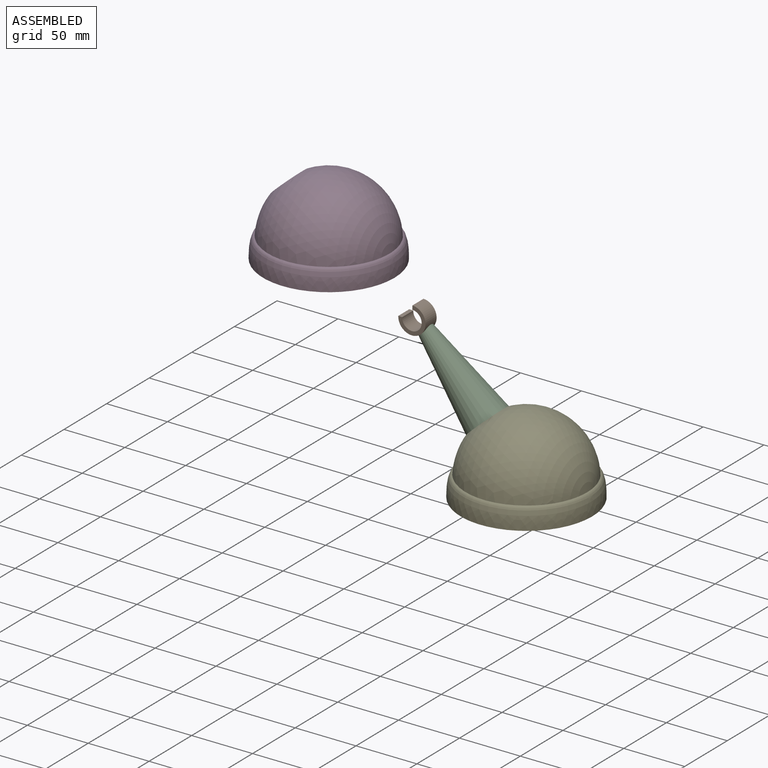
[diagram: assembled view]
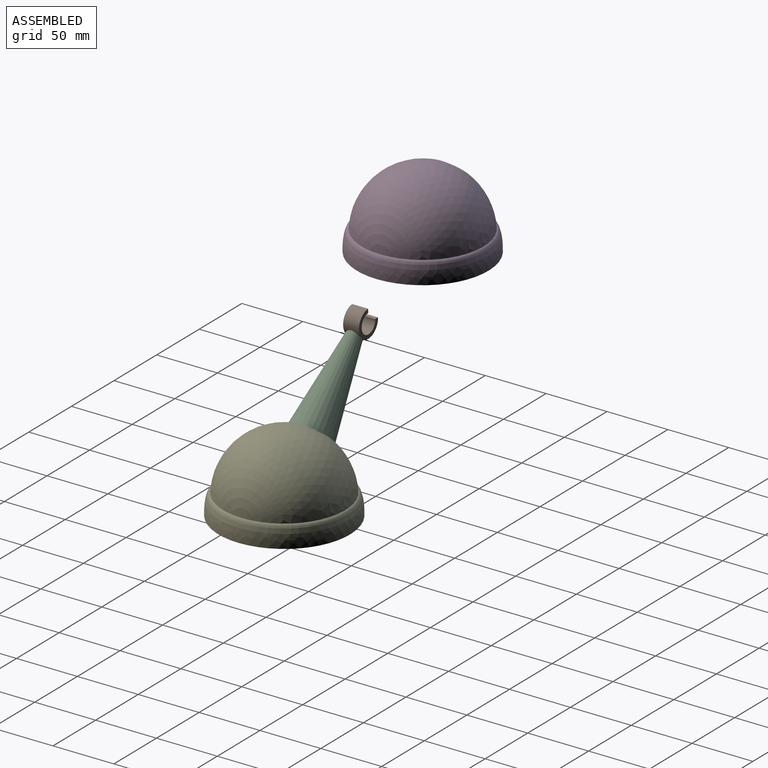
[diagram: assembled view, second angle]
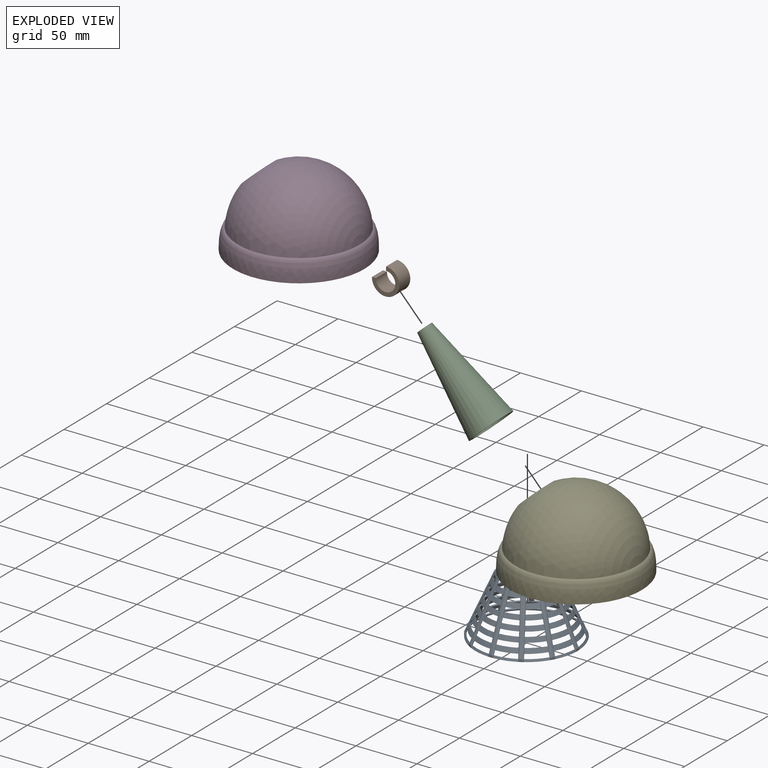
[diagram: exploded view]
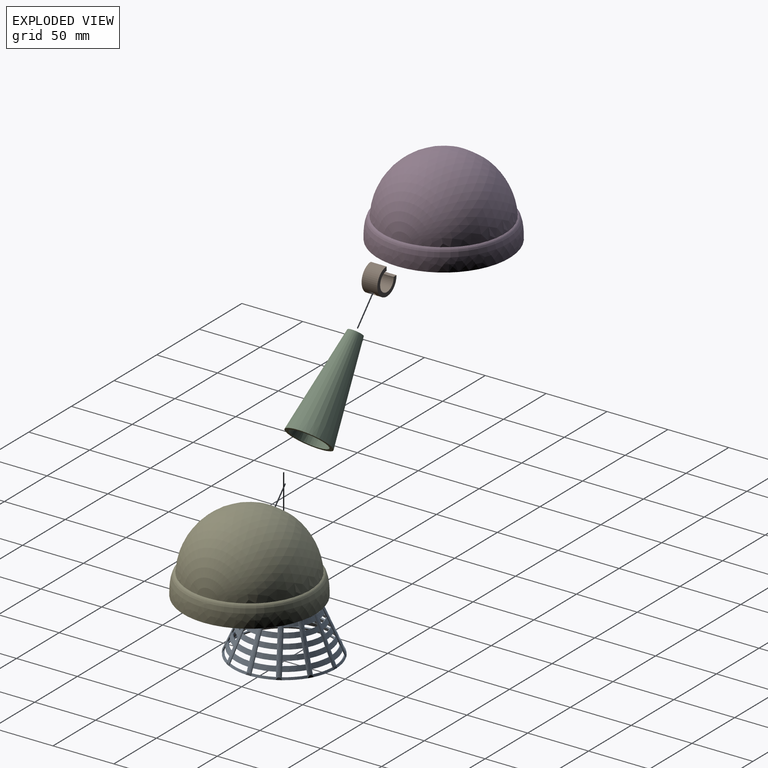
[diagram: exploded view, second angle]
ASSEMBLY  parts=5 mates=3
PART A: 235 faces, bbox 91x91x52.1 mm
  f0: cylinder r=19.97mm len=39.94mm, axis (0,0,-1), area 125.5mm2, adj f1,f216
  f1: plane 39.94x39.94mm, normal (0,0,1), area 855.3mm2, adj f0,f3,f4,f5,f6,f7,f8,f9
  f2: plane 41.24x41.24mm, normal (0,0,-1), area 938.1mm2, adj f3,f4,f5,f6,f7,f8,f9,f10
  f3: cylinder r=2mm len=2mm, axis (-0.87,0.5,0), area 4.1mm2, adj f1,f2,f4,f5
  f4: cylinder r=2mm len=2mm, axis (0,1,0), area 4.1mm2, adj f1,f2,f3,f5
  f5: torus R=6.97mm, axis (0,0,1), area 2.9mm2, adj f1,f2,f3,f4
  f6: cylinder r=2mm len=2mm, axis (-0.87,0.5,0), area 4.1mm2, adj f1,f2,f7,f8
  f7: cylinder r=2mm len=2mm, axis (0.87,0.5,0), area 4.1mm2, adj f1,f2,f6,f8
  f8: torus R=6.97mm, axis (0,0,1), area 2.9mm2, adj f1,f2,f6,f7
  f9: cylinder r=2mm len=2.8mm, axis (-0.87,0.5,0), area 6.5mm2, adj f1,f2,f11,f12
  f10: cylinder r=2mm len=3.08mm, axis (0,1,0), area 6.5mm2, adj f1,f2,f11,f12
  f11: torus R=13.47mm, axis (0,0,1), area 17.3mm2, adj f1,f2,f9,f10
  f12: torus R=6.97mm, axis (0,0,1), area 11.4mm2, adj f1,f2,f9,f10
  f13: cylinder r=2mm len=2.8mm, axis (-0.87,0.5,0), area 6.5mm2, adj f1,f2,f14,f15
  f14: torus R=13.47mm, axis (0,0,1), area 17.3mm2, adj f1,f2,f13,f16
  f15: torus R=6.97mm, axis (0,0,1), area 11.4mm2, adj f1,f2,f13,f16
  f16: cylinder r=2mm len=2.8mm, axis (0.87,0.5,0), area 6.5mm2, adj f1,f2,f14,f15
  f17: cylinder r=2mm len=2.78mm, axis (-0.87,0.5,0), area 6.4mm2, adj f1,f2,f18,f20
  f18: torus R=19.97mm, axis (0,0,1), area 31.6mm2, adj f1,f2,f17,f19
  f19: cylinder r=2mm len=3.05mm, axis (0,1,0), area 6.4mm2, adj f1,f2,f18,f20
  f20: torus R=13.47mm, axis (0,0,1), area 26mm2, adj f1,f2,f17,f19
  f21: cylinder r=2mm len=2.78mm, axis (-0.87,0.5,0), area 6.4mm2, adj f1,f2,f22,f23
  f22: torus R=19.97mm, axis (0,0,1), area 31.6mm2, adj f1,f2,f21,f24
  f23: torus R=13.47mm, axis (0,0,1), area 26.4mm2, adj f1,f2,f21,f24
  f24: cylinder r=2mm len=2.78mm, axis (0.87,0.5,0), area 6.4mm2, adj f1,f2,f22,f23
  f25: torus R=19.97mm, axis (0,0,1), area 31.6mm2, adj f1,f2,f26,f27
  f26: cylinder r=2mm len=2.78mm, axis (0.87,0.5,0), area 6.4mm2, adj f1,f2,f25,f28
  f27: cylinder r=2mm len=2.78mm, axis (0.87,-0.5,0), area 6.4mm2, adj f1,f2,f25,f28
  f28: torus R=13.47mm, axis (0,0,1), area 25.7mm2, adj f1,f2,f26,f27
  f29: torus R=19.97mm, axis (0,0,1), area 31.6mm2, adj f1,f2,f30,f32
  f30: cylinder r=2mm len=3.05mm, axis (0,-1,0), area 6.4mm2, adj f1,f2,f29,f31
  f31: torus R=13.47mm, axis (0,0,1), area 26.4mm2, adj f1,f2,f30,f32
  f32: cylinder r=2mm len=2.78mm, axis (0.87,-0.5,0), area 6.4mm2, adj f1,f2,f29,f31
  f33: torus R=19.97mm, axis (0,0,1), area 31.6mm2, adj f1,f2,f34,f35
  f34: cylinder r=2mm len=3.05mm, axis (0,-1,0), area 6.4mm2, adj f1,f2,f33,f36
  f35: cylinder r=2mm len=2.78mm, axis (0.87,0.5,0), area 6.4mm2, adj f1,f2,f33,f36
  f36: torus R=13.47mm, axis (0,0,1), area 26.4mm2, adj f1,f2,f34,f35
  f37: torus R=19.97mm, axis (0,0,1), area 31.6mm2, adj f1,f2,f38,f39
  f38: cylinder r=2mm len=2.78mm, axis (0.87,0.5,0), area 6.4mm2, adj f1,f2,f37,f40
  f39: cylinder r=2mm len=3.05mm, axis (0,1,0), area 6.4mm2, adj f1,f2,f37,f40
  f40: torus R=13.47mm, axis (0,0,1), area 26mm2, adj f1,f2,f38,f39
  f41: torus R=13.47mm, axis (0,0,1), area 17.3mm2, adj f1,f2,f42,f44
  f42: cylinder r=2mm len=2.8mm, axis (0.87,-0.5,0), area 6.5mm2, adj f1,f2,f41,f43
  f43: torus R=6.97mm, axis (0,0,1), area 11.4mm2, adj f1,f2,f42,f44
  f44: cylinder r=2mm len=3.08mm, axis (0,-1,0), area 6.5mm2, adj f1,f2,f41,f43
  f45: torus R=13.47mm, axis (0,0,1), area 17.3mm2, adj f1,f2,f46,f48
  f46: cylinder r=2mm len=2.8mm, axis (0.87,0.5,0), area 6.5mm2, adj f1,f2,f45,f47
  f47: torus R=6.97mm, axis (0,0,1), area 11.4mm2, adj f1,f2,f46,f48
  f48: cylinder r=2mm len=2.8mm, axis (0.87,-0.5,0), area 6.5mm2, adj f1,f2,f45,f47
  f49: torus R=13.47mm, axis (0,0,1), area 17.3mm2, adj f1,f2,f50,f52
  f50: cylinder r=2mm len=2.8mm, axis (0.87,0.5,0), area 6.5mm2, adj f1,f2,f49,f51
  f51: torus R=6.97mm, axis (0,0,1), area 11.4mm2, adj f1,f2,f50,f52
  f52: cylinder r=2mm len=3.08mm, axis (0,1,0), area 6.5mm2, adj f1,f2,f49,f51
  f53: torus R=13.47mm, axis (0,0,1), area 17.3mm2, adj f1,f2,f55,f56
  f54: torus R=6.97mm, axis (0,0,1), area 11.4mm2, adj f1,f2,f55,f56
  f55: cylinder r=2mm len=2.8mm, axis (0.87,0.5,0), area 6.5mm2, adj f1,f2,f53,f54
  f56: cylinder r=2mm len=3.08mm, axis (0,-1,0), area 6.5mm2, adj f1,f2,f53,f54
  f57: torus R=6.97mm, axis (0,0,1), area 2.9mm2, adj f1,f2,f58,f59
  f58: cylinder r=2mm len=2mm, axis (0.87,0.5,0), area 4.1mm2, adj f1,f2,f57,f59
  f59: cylinder r=2mm len=2mm, axis (0.87,-0.5,0), area 4.1mm2, adj f1,f2,f57,f58
  f60: torus R=6.97mm, axis (0,0,1), area 2.9mm2, adj f1,f2,f61,f62
  f61: cylinder r=2mm len=2mm, axis (0.87,-0.5,0), area 4.1mm2, adj f1,f2,f60,f62
  f62: cylinder r=2mm len=2mm, axis (0,-1,0), area 4.1mm2, adj f1,f2,f60,f61
  f63: torus R=6.97mm, axis (0,0,1), area 2.9mm2, adj f1,f2,f64,f65
  f64: cylinder r=2mm len=2mm, axis (0.87,0.5,0), area 4.1mm2, adj f1,f2,f63,f65
  f65: cylinder r=2mm len=2mm, axis (0,-1,0), area 4.1mm2, adj f1,f2,f63,f64
  f66: torus R=6.97mm, axis (0,0,1), area 2.9mm2, adj f1,f2,f67,f68
  f67: cylinder r=2mm len=2mm, axis (0.87,0.5,0), area 4.1mm2, adj f1,f2,f66,f68
  f68: cylinder r=2mm len=2mm, axis (0,1,0), area 4.1mm2, adj f1,f2,f66,f67
  f69: bspline ~51.99x20.46mm, area 359.1mm2, adj f80,f81,f102,f114,f115,f116,f117,f118
  f70: bspline ~51.99x20.46mm, area 359.1mm2, adj f82,f83,f103,f115,f116,f117,f118,f119
  f71: bspline ~51.99x21.36mm, area 359.1mm2, adj f84,f85,f104,f123,f124,f125,f126,f127
  f72: bspline ~51.99x20.46mm, area 359.1mm2, adj f86,f87,f105,f131,f132,f133,f134,f135
  f73: bspline ~51.99x20.46mm, area 359.1mm2, adj f88,f89,f106,f139,f140,f141,f142,f143
  f74: bspline ~51.99x21.36mm, area 359.1mm2, adj f90,f91,f107,f147,f148,f149,f150,f151
  f75: bspline ~51.99x20.46mm, area 359.1mm2, adj f92,f93,f108,f155,f156,f157,f158,f159
  f76: bspline ~51.99x20.46mm, area 359.1mm2, adj f94,f95,f109,f163,f164,f165,f166,f167
  f77: bspline ~51.99x21.36mm, area 359.1mm2, adj f96,f97,f110,f171,f172,f173,f174,f175
  f78: bspline ~51.99x20.46mm, area 359.1mm2, adj f98,f99,f111,f179,f180,f181,f182,f183
  f79: bspline ~51.99x20.46mm, area 359.1mm2, adj f100,f101,f112,f114,f187,f188,f189,f190
  f80: plane 1.85x1.12mm, normal (-0.87,0.5,0), area 0.1mm2, adj f69,f121,f234
  f81: plane 1.85x1.12mm, normal (-0.87,0.5,0), area 0.1mm2, adj f69,f114,f234
  f82: plane 1.85x1.12mm, normal (-0.5,0.87,0), area 0.1mm2, adj f70,f129,f233
  f83: plane 1.85x1.12mm, normal (-0.5,0.87,0), area 0.1mm2, adj f70,f121,f233
  f84: plane 2.12x0.34mm, normal (0,1,0), area 0.1mm2, adj f71,f137,f232
  f85: plane 2.12x0.35mm, normal (0,1,0), area 0.1mm2, adj f71,f129,f232
  f86: plane 1.85x1.12mm, normal (0.5,0.87,0), area 0.1mm2, adj f72,f145,f231
  f87: plane 1.85x1.12mm, normal (0.5,0.87,0), area 0.1mm2, adj f72,f137,f231
  f88: plane 1.85x1.12mm, normal (0.87,0.5,0), area 0.1mm2, adj f73,f153,f230
  f89: plane 1.85x1.12mm, normal (0.87,0.5,0), area 0.1mm2, adj f73,f145,f230
  f90: plane 2.12x0.35mm, normal (1,0,0), area 0.1mm2, adj f74,f161,f229
  f91: plane 2.12x0.34mm, normal (1,0,0), area 0.1mm2, adj f74,f153,f229
  f92: plane 1.85x1.12mm, normal (0.87,-0.5,0), area 0.1mm2, adj f75,f169,f228
  f93: plane 1.85x1.12mm, normal (0.87,-0.5,0), area 0.1mm2, adj f75,f161,f228
  f94: plane 1.85x1.12mm, normal (0.5,-0.87,0), area 0.1mm2, adj f76,f177,f227
  f95: plane 1.85x1.12mm, normal (0.5,-0.87,0), area 0.1mm2, adj f76,f169,f227
  f96: plane 2.12x0.35mm, normal (0,-1,0), area 0.1mm2, adj f77,f185,f226
  f97: plane 2.12x0.34mm, normal (0,-1,0), area 0.1mm2, adj f77,f177,f226
  f98: plane 1.85x1.12mm, normal (-0.5,-0.87,0), area 0.1mm2, adj f78,f193,f225
  f99: plane 1.85x1.12mm, normal (-0.5,-0.87,0), area 0.1mm2, adj f78,f185,f225
  f100: plane 1.85x1.12mm, normal (-0.87,-0.5,0), area 0.1mm2, adj f79,f114,f224
  f101: plane 1.85x1.12mm, normal (-0.87,-0.5,0), area 0.1mm2, adj f79,f193,f224
  f102: plane 3.46x2mm, normal (0.87,-0.5,0), area 6.3mm2, adj f69,f223
  f103: plane 3.46x2mm, normal (0.5,-0.87,0), area 6.3mm2, adj f70,f223
  f104: plane 4x2mm, normal (0,-1,0), area 6.3mm2, adj f71,f223
  f105: plane 3.46x2mm, normal (-0.5,-0.87,0), area 6.3mm2, adj f72,f223
  f106: plane 3.46x2mm, normal (-0.87,-0.5,0), area 6.3mm2, adj f73,f223
  f107: plane 4x2mm, normal (-1,0,0), area 6.3mm2, adj f74,f223
  f108: plane 3.46x2mm, normal (-0.87,0.5,0), area 6.3mm2, adj f75,f223
  f109: plane 3.46x2mm, normal (-0.5,0.87,0), area 6.3mm2, adj f76,f223
  f110: plane 4x2mm, normal (0,1,0), area 6.3mm2, adj f77,f223
  f111: plane 3.46x2mm, normal (0.5,0.87,0), area 6.3mm2, adj f78,f223
  f112: plane 3.46x2mm, normal (0.87,0.5,0), area 6.3mm2, adj f79,f223
  f113: cone r=41.06mm half-angle=24deg, axis (0,0,1), area 328.5mm2, adj f196,f223
  f114: cone r=41.98mm half-angle=24deg, axis (0,0,1), area 904.4mm2, adj f2,f69,f79,f81,f100,f195,f196,f197
  f115: cone r=41.98mm half-angle=24deg, axis (0,0,1), area 35.5mm2, adj f69,f70,f196,f223
  f116: cone r=41.98mm half-angle=24deg, axis (0,0,1), area 65.5mm2, adj f69,f70,f195,f198
  f117: cone r=41.98mm half-angle=24deg, axis (0,0,1), area 59.2mm2, adj f69,f70,f199,f201
  f118: cone r=41.98mm half-angle=24deg, axis (0,0,1), area 52.8mm2, adj f69,f70,f202,f204
  f119: cone r=41.98mm half-angle=24deg, axis (0,0,1), area 46.4mm2, adj f69,f70,f205,f207
  f120: cone r=41.98mm half-angle=24deg, axis (0,0,1), area 40mm2, adj f69,f70,f208,f210
  f121: cone r=41.98mm half-angle=24deg, axis (0,0,1), area 14.5mm2, adj f2,f69,f70,f80,f83,f215
  f122: cone r=41.98mm half-angle=24deg, axis (0,0,1), area 33.6mm2, adj f69,f70,f211,f214
  f123: cone r=41.98mm half-angle=24deg, axis (0,0,1), area 35.5mm2, adj f70,f71,f196,f223
  f124: cone r=41.98mm half-angle=24deg, axis (0,0,1), area 65.5mm2, adj f70,f71,f195,f198
  f125: cone r=41.98mm half-angle=24deg, axis (0,0,1), area 59.2mm2, adj f70,f71,f199,f201
  f126: cone r=41.98mm half-angle=24deg, axis (0,0,1), area 52.8mm2, adj f70,f71,f202,f204
  f127: cone r=41.98mm half-angle=24deg, axis (0,0,1), area 46.4mm2, adj f70,f71,f205,f207
  f128: cone r=41.98mm half-angle=24deg, axis (0,0,1), area 40mm2, adj f70,f71,f208,f210
  f129: cone r=41.98mm half-angle=24deg, axis (0,0,1), area 14.5mm2, adj f2,f70,f71,f82,f85,f215
  f130: cone r=41.98mm half-angle=24deg, axis (0,0,1), area 33.6mm2, adj f70,f71,f211,f214
  f131: cone r=41.98mm half-angle=24deg, axis (0,0,1), area 35.5mm2, adj f71,f72,f196,f223
  f132: cone r=41.98mm half-angle=24deg, axis (0,0,1), area 65.5mm2, adj f71,f72,f195,f198
  f133: cone r=41.98mm half-angle=24deg, axis (0,0,1), area 59.2mm2, adj f71,f72,f199,f201
  f134: cone r=41.98mm half-angle=24deg, axis (0,0,1), area 52.8mm2, adj f71,f72,f202,f204
  f135: cone r=41.98mm half-angle=24deg, axis (0,0,1), area 46.4mm2, adj f71,f72,f205,f207
  f136: cone r=41.98mm half-angle=24deg, axis (0,0,1), area 40mm2, adj f71,f72,f208,f210
  f137: cone r=41.98mm half-angle=24deg, axis (0,0,1), area 14.5mm2, adj f2,f71,f72,f84,f87,f215
  f138: cone r=41.98mm half-angle=24deg, axis (0,0,1), area 33.6mm2, adj f71,f72,f211,f214
  f139: cone r=41.98mm half-angle=24deg, axis (0,0,1), area 35.5mm2, adj f72,f73,f196,f223
  f140: cone r=41.98mm half-angle=24deg, axis (0,0,1), area 65.5mm2, adj f72,f73,f195,f198
  f141: cone r=41.98mm half-angle=24deg, axis (0,0,1), area 59.2mm2, adj f72,f73,f199,f201
  f142: cone r=41.98mm half-angle=24deg, axis (0,0,1), area 52.8mm2, adj f72,f73,f202,f204
  f143: cone r=41.98mm half-angle=24deg, axis (0,0,1), area 46.4mm2, adj f72,f73,f205,f207
  f144: cone r=41.98mm half-angle=24deg, axis (0,0,1), area 40mm2, adj f72,f73,f208,f210
  f145: cone r=41.98mm half-angle=24deg, axis (0,0,1), area 14.5mm2, adj f2,f72,f73,f86,f89,f215
  f146: cone r=41.98mm half-angle=24deg, axis (0,0,1), area 33.6mm2, adj f72,f73,f211,f214
  f147: cone r=41.98mm half-angle=24deg, axis (0,0,1), area 35.5mm2, adj f73,f74,f196,f223
  f148: cone r=41.98mm half-angle=24deg, axis (0,0,1), area 65.5mm2, adj f73,f74,f195,f198
  f149: cone r=41.98mm half-angle=24deg, axis (0,0,1), area 59.2mm2, adj f73,f74,f199,f201
  f150: cone r=41.98mm half-angle=24deg, axis (0,0,1), area 52.8mm2, adj f73,f74,f202,f204
  f151: cone r=41.98mm half-angle=24deg, axis (0,0,1), area 46.4mm2, adj f73,f74,f205,f207
  f152: cone r=41.98mm half-angle=24deg, axis (0,0,1), area 40mm2, adj f73,f74,f208,f210
  f153: cone r=41.98mm half-angle=24deg, axis (0,0,1), area 14.5mm2, adj f2,f73,f74,f88,f91,f215
  f154: cone r=41.98mm half-angle=24deg, axis (0,0,1), area 33.6mm2, adj f73,f74,f211,f214
  f155: cone r=41.98mm half-angle=24deg, axis (0,0,1), area 35.5mm2, adj f74,f75,f196,f223
  f156: cone r=41.98mm half-angle=24deg, axis (0,0,1), area 65.5mm2, adj f74,f75,f195,f198
  f157: cone r=41.98mm half-angle=24deg, axis (0,0,1), area 59.2mm2, adj f74,f75,f199,f201
  f158: cone r=41.98mm half-angle=24deg, axis (0,0,1), area 52.8mm2, adj f74,f75,f202,f204
  f159: cone r=41.98mm half-angle=24deg, axis (0,0,1), area 46.4mm2, adj f74,f75,f205,f207
  f160: cone r=41.98mm half-angle=24deg, axis (0,0,1), area 40mm2, adj f74,f75,f208,f210
  f161: cone r=41.98mm half-angle=24deg, axis (0,0,1), area 14.5mm2, adj f2,f74,f75,f90,f93,f215
  f162: cone r=41.98mm half-angle=24deg, axis (0,0,1), area 33.6mm2, adj f74,f75,f211,f214
  f163: cone r=41.98mm half-angle=24deg, axis (0,0,1), area 35.5mm2, adj f75,f76,f196,f223
  f164: cone r=41.98mm half-angle=24deg, axis (0,0,1), area 65.5mm2, adj f75,f76,f195,f198
  f165: cone r=41.98mm half-angle=24deg, axis (0,0,1), area 59.2mm2, adj f75,f76,f199,f201
  f166: cone r=41.98mm half-angle=24deg, axis (0,0,1), area 52.8mm2, adj f75,f76,f202,f204
  f167: cone r=41.98mm half-angle=24deg, axis (0,0,1), area 46.4mm2, adj f75,f76,f205,f207
  f168: cone r=41.98mm half-angle=24deg, axis (0,0,1), area 40mm2, adj f75,f76,f208,f210
  f169: cone r=41.98mm half-angle=24deg, axis (0,0,1), area 14.5mm2, adj f2,f75,f76,f92,f95,f215
  f170: cone r=41.98mm half-angle=24deg, axis (0,0,1), area 33.6mm2, adj f75,f76,f211,f214
  f171: cone r=41.98mm half-angle=24deg, axis (0,0,1), area 35.5mm2, adj f76,f77,f196,f223
  f172: cone r=41.98mm half-angle=24deg, axis (0,0,1), area 65.5mm2, adj f76,f77,f195,f198
  f173: cone r=41.98mm half-angle=24deg, axis (0,0,1), area 59.2mm2, adj f76,f77,f199,f201
  f174: cone r=41.98mm half-angle=24deg, axis (0,0,1), area 52.8mm2, adj f76,f77,f202,f204
  f175: cone r=41.98mm half-angle=24deg, axis (0,0,1), area 46.4mm2, adj f76,f77,f205,f207
  f176: cone r=41.98mm half-angle=24deg, axis (0,0,1), area 40mm2, adj f76,f77,f208,f210
  f177: cone r=41.98mm half-angle=24deg, axis (0,0,1), area 14.5mm2, adj f2,f76,f77,f94,f97,f215
  f178: cone r=41.98mm half-angle=24deg, axis (0,0,1), area 33.6mm2, adj f76,f77,f211,f214
  f179: cone r=41.98mm half-angle=24deg, axis (0,0,1), area 35.5mm2, adj f77,f78,f196,f223
  f180: cone r=41.98mm half-angle=24deg, axis (0,0,1), area 65.5mm2, adj f77,f78,f195,f198
  f181: cone r=41.98mm half-angle=24deg, axis (0,0,1), area 59.2mm2, adj f77,f78,f199,f201
  f182: cone r=41.98mm half-angle=24deg, axis (0,0,1), area 52.8mm2, adj f77,f78,f202,f204
  f183: cone r=41.98mm half-angle=24deg, axis (0,0,1), area 46.4mm2, adj f77,f78,f205,f207
  f184: cone r=41.98mm half-angle=24deg, axis (0,0,1), area 40mm2, adj f77,f78,f208,f210
  f185: cone r=41.98mm half-angle=24deg, axis (0,0,1), area 14.5mm2, adj f2,f77,f78,f96,f99,f215
  f186: cone r=41.98mm half-angle=24deg, axis (0,0,1), area 33.6mm2, adj f77,f78,f211,f214
  f187: cone r=41.98mm half-angle=24deg, axis (0,0,1), area 35.5mm2, adj f78,f79,f196,f223
  f188: cone r=41.98mm half-angle=24deg, axis (0,0,1), area 65.5mm2, adj f78,f79,f195,f198
  f189: cone r=41.98mm half-angle=24deg, axis (0,0,1), area 59.2mm2, adj f78,f79,f199,f201
  f190: cone r=41.98mm half-angle=24deg, axis (0,0,1), area 52.8mm2, adj f78,f79,f202,f204
  f191: cone r=41.98mm half-angle=24deg, axis (0,0,1), area 46.4mm2, adj f78,f79,f205,f207
  f192: cone r=41.98mm half-angle=24deg, axis (0,0,1), area 40mm2, adj f78,f79,f208,f210
  f193: cone r=41.98mm half-angle=24deg, axis (0,0,1), area 14.5mm2, adj f2,f78,f79,f98,f101,f215
  f194: cone r=41.98mm half-angle=24deg, axis (0,0,1), area 33.6mm2, adj f78,f79,f211,f214
  f195: torus R=38.93mm, axis (0,0,1), area 227.6mm2, adj f69,f70,f71,f72,f73,f74,f75,f76
  f196: torus R=41.98mm, axis (0,0,1), area 237.4mm2, adj f69,f70,f71,f72,f73,f74,f75,f76
  f197: bspline ~52x21.36mm, area 18.4mm2, adj f114,f195,f196
  f198: torus R=38.93mm, axis (0,0,1), area 217.3mm2, adj f69,f70,f71,f72,f73,f74,f75,f76
  f199: torus R=35.88mm, axis (0,0,1), area 207.6mm2, adj f69,f70,f71,f72,f73,f74,f75,f76
  f200: bspline ~52x21.36mm, area 18.3mm2, adj f114,f198,f199
  f201: torus R=35.88mm, axis (0,0,1), area 197.4mm2, adj f69,f70,f71,f72,f73,f74,f75,f76
  f202: torus R=32.83mm, axis (0,0,1), area 187.6mm2, adj f69,f70,f71,f72,f73,f74,f75,f76
  f203: bspline ~52x21.36mm, area 18.3mm2, adj f114,f201,f202
  f204: torus R=32.83mm, axis (0,0,1), area 177.4mm2, adj f69,f70,f71,f72,f73,f74,f75,f76
  f205: torus R=29.77mm, axis (0,0,1), area 167.6mm2, adj f69,f70,f71,f72,f73,f74,f75,f76
  f206: bspline ~52x21.36mm, area 18.2mm2, adj f114,f204,f205
  f207: torus R=29.77mm, axis (0,0,1), area 157.4mm2, adj f69,f70,f71,f72,f73,f74,f75,f76
  f208: torus R=26.72mm, axis (0,0,1), area 147.6mm2, adj f69,f70,f71,f72,f73,f74,f75,f76
  f209: bspline ~52x21.36mm, area 18.2mm2, adj f114,f207,f208
  f210: torus R=26.72mm, axis (0,0,1), area 137.5mm2, adj f69,f70,f71,f72,f73,f74,f75,f76
  f211: torus R=23.67mm, axis (0,0,1), area 127.7mm2, adj f69,f70,f71,f72,f73,f74,f75,f76
  f212: bspline ~52x21.36mm, area 18.1mm2, adj f114,f210,f211
  f213: bspline ~52x21.36mm, area 18mm2, adj f114,f214,f215
  f214: torus R=23.67mm, axis (0,0,1), area 117.6mm2, adj f69,f70,f71,f72,f73,f74,f75,f76
  f215: torus R=20.62mm, axis (0,0,1), area 107.8mm2, adj f69,f70,f71,f72,f73,f74,f75,f76
  f216: cone r=41.06mm half-angle=24deg, axis (0,0,1), area 137.3mm2, adj f0,f215
  f217: cone r=41.06mm half-angle=24deg, axis (0,0,1), area 827.4mm2, adj f195,f198
  f218: cone r=41.06mm half-angle=24deg, axis (0,0,1), area 761mm2, adj f199,f201
  f219: cone r=41.06mm half-angle=24deg, axis (0,0,1), area 694.6mm2, adj f202,f204
  f220: cone r=41.06mm half-angle=24deg, axis (0,0,1), area 628.2mm2, adj f205,f207
  f221: cone r=41.06mm half-angle=24deg, axis (0,0,1), area 561.8mm2, adj f208,f210
  f222: cone r=41.06mm half-angle=24deg, axis (0,0,1), area 495.4mm2, adj f211,f214
  f223: plane 83.96x83.96mm, normal (0,0,1), area 285.6mm2, adj f69,f70,f71,f72,f73,f74,f75,f76
  f224: plane 3.52x2.27mm, normal (0,0,-1), area 2.8mm2, adj f79,f100,f101
  f225: plane 3.52x2.27mm, normal (0,0,-1), area 2.8mm2, adj f78,f98,f99
  f226: plane 4x0.89mm, normal (0,0,-1), area 2.8mm2, adj f77,f96,f97
  f227: plane 3.52x2.27mm, normal (0,0,-1), area 2.8mm2, adj f76,f94,f95
  f228: plane 3.52x2.27mm, normal (0,0,-1), area 2.8mm2, adj f75,f92,f93
  f229: plane 4x0.89mm, normal (0,0,-1), area 2.8mm2, adj f74,f90,f91
  f230: plane 3.52x2.27mm, normal (0,0,-1), area 2.8mm2, adj f73,f88,f89
  f231: plane 3.52x2.27mm, normal (0,0,-1), area 2.8mm2, adj f72,f86,f87
  f232: plane 4x0.89mm, normal (0,0,-1), area 2.8mm2, adj f71,f84,f85
  f233: plane 3.52x2.27mm, normal (0,0,-1), area 2.8mm2, adj f70,f82,f83
  f234: plane 3.52x2.27mm, normal (0,0,-1), area 2.8mm2, adj f69,f80,f81
PART B: 7 faces, bbox 22.4x13x19.1 mm
  f0: cylinder r=11.2mm len=22.4mm, axis (0,1,0), area 656.1mm2, adj f1,f3,f4,f5,f6
  f1: plane 13x2.27mm, normal (-0.7,0,0.71), area 41.6mm2, adj f0,f2,f4,f5
  f2: cylinder r=8mm len=16mm, axis (0,1,0), area 460.2mm2, adj f1,f3,f4,f5,f6
  f3: plane 13x2.27mm, normal (0.7,0,0.71), area 41.6mm2, adj f0,f2,f4,f5
  f4: plane 22.4x19.08mm, normal (0,-1,0), area 144.5mm2, adj f0,f1,f2,f3
  f5: plane 22.4x19.08mm, normal (0,1,0), area 144.5mm2, adj f0,f1,f2,f3
  f6: cylinder r=3mm len=6mm, axis (0,0,1), area 61.9mm2, adj f0,f2
PART C: 4 faces, bbox 36.1x36.1x80 mm
  f0: plane 36.07x36.07mm, normal (0,0,-1), area 314.8mm2, adj f1,f3
  f1: cone r=5.97mm half-angle=8.5deg, axis (0,0,-1), area 6116.4mm2, adj f0,f2
  f2: plane 12.07x12.07mm, normal (0,0,1), area 86.1mm2, adj f1,f3
  f3: cone r=3mm half-angle=8.5deg, axis (0,0,-1), area 4574.5mm2, adj f0,f2
PART D: 7 faces, bbox 108x108x64 mm
  f0: sphere r=50mm, area 14025.9mm2, adj f3,f4
  f1: plane 100x100mm, normal (0,0,-1), area 1492.3mm2, adj f2,f6
  f2: sphere r=45mm, area 11995.7mm2, adj f1,f3
  f3: cylinder r=15mm len=30mm, axis (-0.68,0,0.73), area 496.7mm2, adj f0,f2
  f4: revolved ~108x108mm, area 6059mm2, adj f0,f5
  f5: plane 108x108mm, normal (0,0,-1), area 666mm2, adj f4,f6
  f6: revolved ~104.11x104.11mm, area 4633.6mm2, adj f1,f5
PART E: same geometry as D
PLACE A rot(axis=(0,1,0),180deg) t=(0,0,14)mm
PLACE B rot(axis=(0,-1,0),43.1deg) t=(-89.83,0,110.04)mm
PLACE C rot(axis=(0,-1,0),43.1deg) t=(-28.98,0,44.99)mm
PLACE D t=(-162.39,0,147.8)mm
PLACE E t=(0,0,14)mm
MATE planar B.f6 <-> C.f1  axis (-0.68,0,0.73) through (-83.18,0,102.94)mm
MATE planar C.f1 <-> E.f3  axis (0.68,0,-0.73) through (-28.98,0,44.99)mm
MATE planar A.f196 <-> E.f0  axis (0,0,1) through (0,0,54)mm
